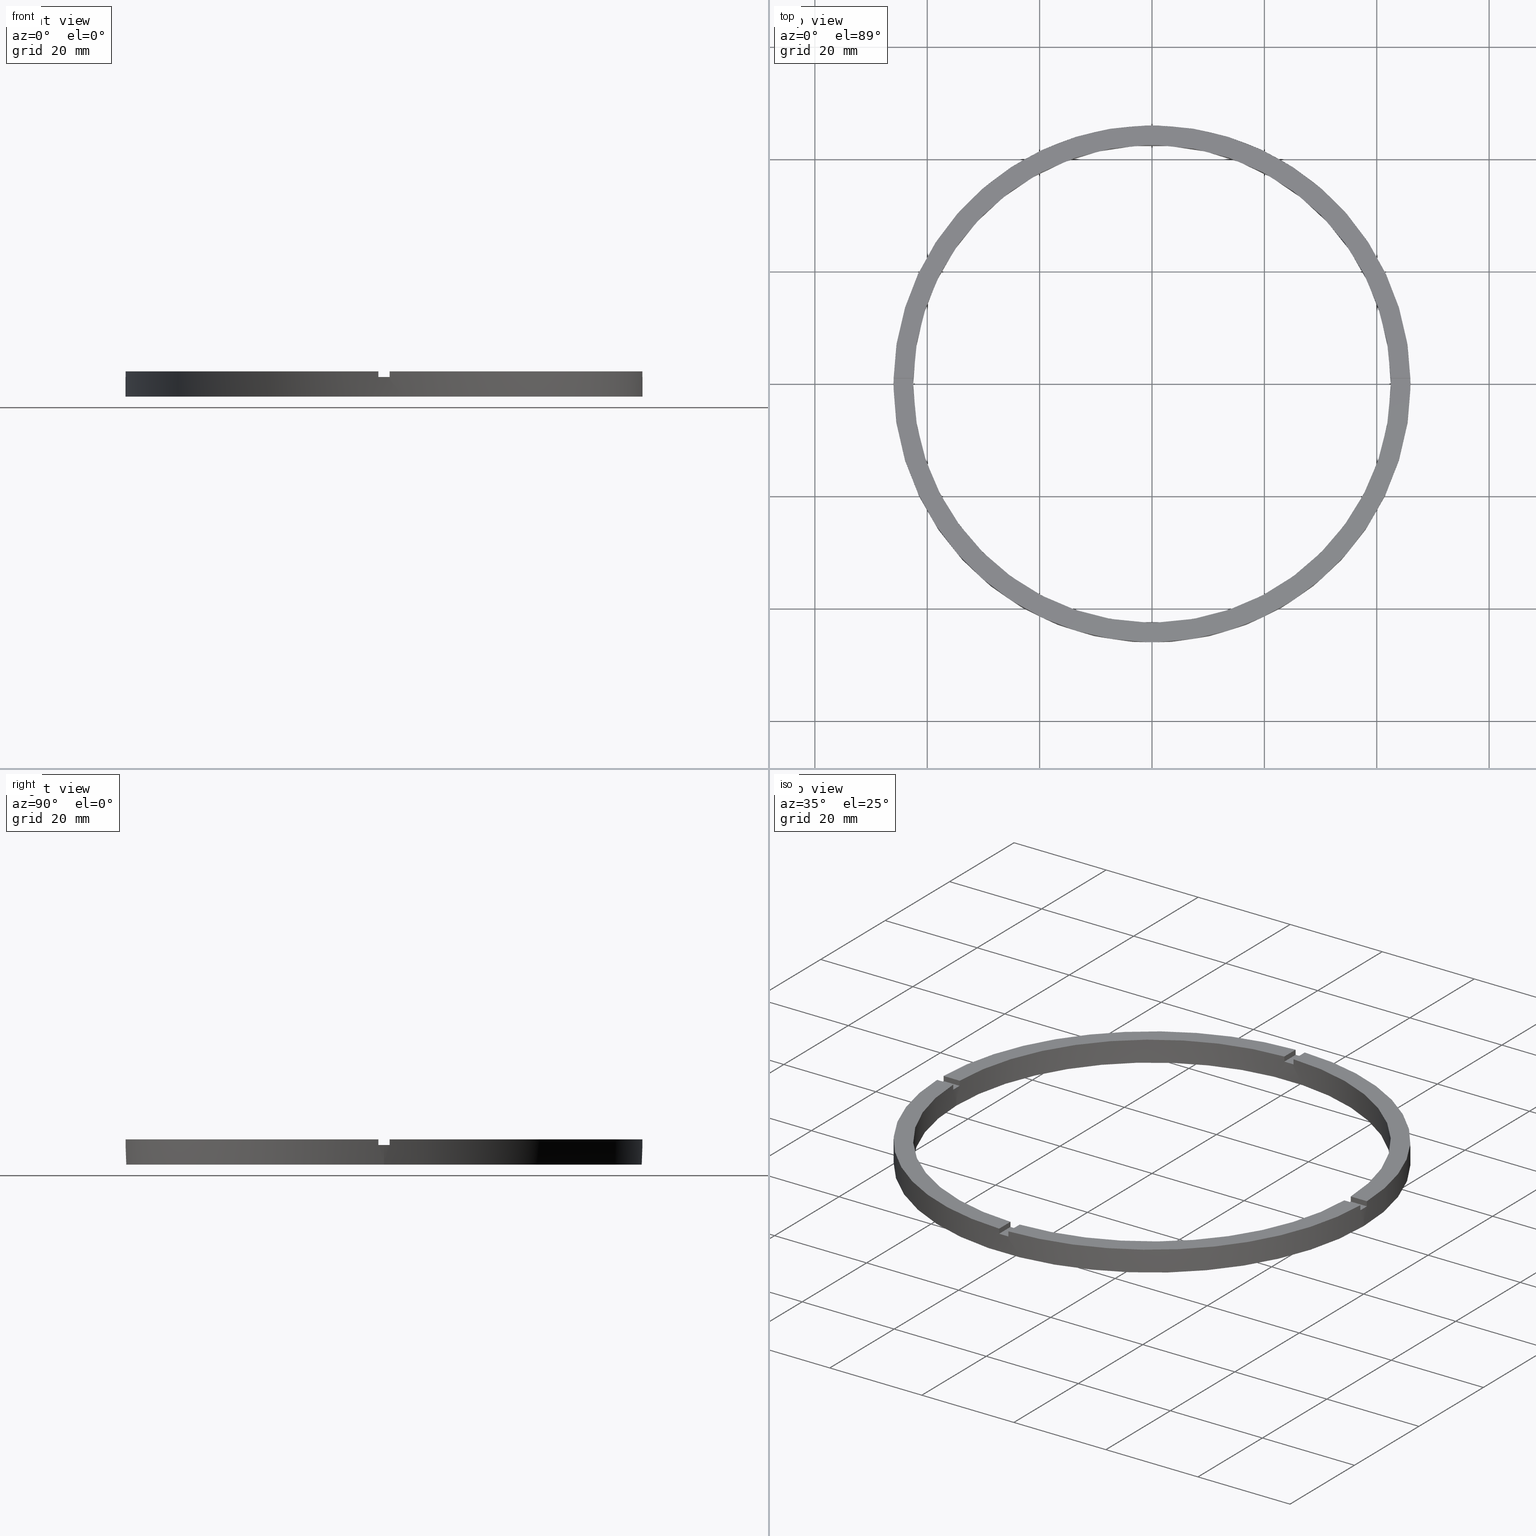
[diagram: canonical four-view strip — front | top / right | iso, engineering-drawing reading convention]
A machine part, canonical four-view strip (front | top / right | iso — engineering-drawing reading convention). The complete STEP part file that produces these views, byte-faithful:
ISO-10303-21;
HEADER;
FILE_DESCRIPTION (( 'STEP AP203' ),
    '1' );
FILE_NAME ('514188.step',
    '2024-12-26T02:46:10',
    ( 'MSI' ),
    ( '' ),
    'SwSTEP 2.0',
    'SolidWorks 2020',
    '' );
FILE_SCHEMA (( 'CONFIG_CONTROL_DESIGN' ));
ENDSEC;

DATA;
#1 = VERTEX_POINT ( 'NONE', #701 ) ;
#2 = CARTESIAN_POINT ( 'NONE',  ( 0.000000000000000000, 0.000000000000000000, 3.499999999999999556 ) ) ;
#3 = DIRECTION ( 'NONE',  ( 0.000000000000000000, -0.000000000000000000, 1.000000000000000000 ) ) ;
#4 = EDGE_LOOP ( 'NONE', ( #143, #475, #399, #482 ) ) ;
#5 = VECTOR ( 'NONE', #535, 1000.000000000000000 ) ;
#6 = EDGE_CURVE ( 'NONE', #17, #240, #424, .T. ) ;
#7 = AXIS2_PLACEMENT_3D ( 'NONE', #286, #302, #50 ) ;
#8 = DIRECTION ( 'NONE',  ( 1.000000000000000000, 0.000000000000000000, 0.000000000000000000 ) ) ;
#9 = EDGE_LOOP ( 'NONE', ( #269, #517, #467, #547 ) ) ;
#10 = PLANE ( 'NONE',  #643 ) ;
#11 = VERTEX_POINT ( 'NONE', #138 ) ;
#12 = DIRECTION ( 'NONE',  ( 0.000000000000000000, 0.000000000000000000, 1.000000000000000000 ) ) ;
#13 = DATE_AND_TIME ( #42, #293 ) ;
#14 = EDGE_LOOP ( 'NONE', ( #731, #448, #456, #385 ) ) ;
#15 = DIRECTION ( 'NONE',  ( 1.000000000000000000, 0.000000000000000000, 0.000000000000000000 ) ) ;
#16 = AXIS2_PLACEMENT_3D ( 'NONE', #728, #144, #89 ) ;
#17 = VERTEX_POINT ( 'NONE', #306 ) ;
#18 = CARTESIAN_POINT ( 'NONE',  ( 0.9999999999999737987, 36.00000000000000000, 4.500000000000000000 ) ) ;
#19 = EDGE_CURVE ( 'NONE', #487, #727, #180, .T. ) ;
#20 = ORIENTED_EDGE ( 'NONE', *, *, #700, .T. ) ;
#21 = DIRECTION ( 'NONE',  ( 0.000000000000000000, 0.000000000000000000, 1.000000000000000000 ) ) ;
#22 = EDGE_CURVE ( 'NONE', #504, #131, #178, .T. ) ;
#23 = VERTEX_POINT ( 'NONE', #656 ) ;
#24 = ADVANCED_FACE ( 'NONE', ( #680 ), #726, .T. ) ;
#25 = APPLICATION_PROTOCOL_DEFINITION ( 'international standard', 'config_control_design', 1994, #735 ) ;
#26 = CC_DESIGN_PERSON_AND_ORGANIZATION_ASSIGNMENT ( #317, #521, ( #270 ) ) ;
#27 = DIRECTION ( 'NONE',  ( -0.000000000000000000, -0.000000000000000000, -1.000000000000000000 ) ) ;
#28 = PERSON_AND_ORGANIZATION ( #272, #305 ) ;
#29 = PLANE ( 'NONE',  #102 ) ;
#30 = DIRECTION ( 'NONE',  ( 1.000000000000000000, 0.000000000000000000, 0.000000000000000000 ) ) ;
#31 = LOCAL_TIME ( 10, 46, 10.00000000000000000, #33 ) ;
#32 = SHAPE_DEFINITION_REPRESENTATION ( #621, #633 ) ;
#33 = COORDINATED_UNIVERSAL_TIME_OFFSET ( 8, 0, .AHEAD. ) ;
#34 = CARTESIAN_POINT ( 'NONE',  ( 42.48823366533375889, 0.9999999999998439026, 3.499999999999999556 ) ) ;
#35 = PERSON_AND_ORGANIZATION ( #272, #305 ) ;
#36 = CALENDAR_DATE ( 2024, 26, 12 ) ;
#37 = EDGE_CURVE ( 'NONE', #454, #17, #695, .T. ) ;
#38 = SECURITY_CLASSIFICATION_LEVEL ( 'unclassified' ) ;
#39 = DIRECTION ( 'NONE',  ( -0.000000000000000000, -0.000000000000000000, -1.000000000000000000 ) ) ;
#40 = CARTESIAN_POINT ( 'NONE',  ( -46.00000000000000000, 0.000000000000000000, 0.000000000000000000 ) ) ;
#41 = CARTESIAN_POINT ( 'NONE',  ( 0.9999999999998421263, -45.98912915026767934, 4.500000000000000000 ) ) ;
#42 = CALENDAR_DATE ( 2024, 26, 12 ) ;
#43 = DIRECTION ( 'NONE',  ( -0.000000000000000000, -0.000000000000000000, -1.000000000000000000 ) ) ;
#44 = APPROVAL_PERSON_ORGANIZATION ( #313, #354, #567 ) ;
#45 = CARTESIAN_POINT ( 'NONE',  ( -1.000000000000159206, -36.00000000000017764, 4.500000000000000000 ) ) ;
#46 = APPLICATION_CONTEXT ( 'configuration controlled 3d designs of mechanical parts and assemblies' ) ;
#47 = EDGE_CURVE ( 'NONE', #454, #492, #430, .T. ) ;
#48 = AXIS2_PLACEMENT_3D ( 'NONE', #626, #296, #380 ) ;
#49 = CARTESIAN_POINT ( 'NONE',  ( 0.000000000000000000, 0.000000000000000000, 3.499999999999999556 ) ) ;
#50 = DIRECTION ( 'NONE',  ( 1.000000000000000000, 0.000000000000000000, 0.000000000000000000 ) ) ;
#51 = DIRECTION ( 'NONE',  ( 0.000000000000000000, 0.000000000000000000, 1.000000000000000000 ) ) ;
#52 = CARTESIAN_POINT ( 'NONE',  ( 0.000000000000000000, 0.000000000000000000, 3.499999999999999556 ) ) ;
#53 = AXIS2_PLACEMENT_3D ( 'NONE', #312, #419, #394 ) ;
#54 = CARTESIAN_POINT ( 'NONE',  ( 0.9999999999999737987, 45.98912915026767223, 3.499999999999999556 ) ) ;
#55 = DIRECTION ( 'NONE',  ( 0.000000000000000000, 0.000000000000000000, 1.000000000000000000 ) ) ;
#56 = DIRECTION ( 'NONE',  ( 0.000000000000000000, 0.000000000000000000, 1.000000000000000000 ) ) ;
#57 = AXIS2_PLACEMENT_3D ( 'NONE', #511, #428, #692 ) ;
#58 = PLANE ( 'NONE',  #495 ) ;
#59 = CALENDAR_DATE ( 2024, 26, 12 ) ;
#60 = APPROVAL_DATE_TIME ( #319, #558 ) ;
#61 = CARTESIAN_POINT ( 'NONE',  ( 0.000000000000000000, 0.000000000000000000, 4.500000000000000000 ) ) ;
#62 = EDGE_CURVE ( 'NONE', #750, #225, #425, .T. ) ;
#63 = PERSON_AND_ORGANIZATION ( #272, #305 ) ;
#64 = CALENDAR_DATE ( 2024, 26, 12 ) ;
#65 = EDGE_CURVE ( 'NONE', #150, #162, #441, .T. ) ;
#66 = DIRECTION ( 'NONE',  ( 1.000000000000000000, 0.000000000000000000, 0.000000000000000000 ) ) ;
#67 = LINE ( 'NONE', #652, #74 ) ;
#68 = VECTOR ( 'NONE', #43, 1000.000000000000000 ) ;
#69 = FACE_OUTER_BOUND ( 'NONE', #267, .T. ) ;
#70 = DIRECTION ( 'NONE',  ( -6.505213034913025371E-17, 1.000000000000000000, 0.000000000000000000 ) ) ;
#71 = CIRCLE ( 'NONE', #327, 42.50000000000000711 ) ;
#72 = CARTESIAN_POINT ( 'NONE',  ( 45.98912915026767223, -1.000000000000155875, 4.500000000000000000 ) ) ;
#73 = EDGE_CURVE ( 'NONE', #162, #11, #445, .T. ) ;
#74 = VECTOR ( 'NONE', #241, 1000.000000000000000 ) ;
#75 = FACE_OUTER_BOUND ( 'NONE', #536, .T. ) ;
#76 = AXIS2_PLACEMENT_3D ( 'NONE', #682, #55, #403 ) ;
#77 = CARTESIAN_POINT ( 'NONE',  ( 35.99999999999999289, -1.000000000000156541, 3.499999999999999556 ) ) ;
#78 = PLANE ( 'NONE',  #169 ) ;
#79 = LINE ( 'NONE', #533, #604 ) ;
#80 = ADVANCED_FACE ( 'NONE', ( #176 ), #690, .F. ) ;
#81 = FACE_OUTER_BOUND ( 'NONE', #212, .T. ) ;
#82 = CIRCLE ( 'NONE', #76, 42.50000000000000711 ) ;
#83 = DIRECTION ( 'NONE',  ( 0.000000000000000000, 1.000000000000000000, 0.000000000000000000 ) ) ;
#84 = LINE ( 'NONE', #543, #606 ) ;
#85 = CIRCLE ( 'NONE', #7, 46.00000000000000000 ) ;
#86 = LINE ( 'NONE', #115, #379 ) ;
#87 = EDGE_CURVE ( 'NONE', #150, #760, #684, .T. ) ;
#88 = DIRECTION ( 'NONE',  ( 1.000000000000000000, 6.505213034913025371E-17, 0.000000000000000000 ) ) ;
#89 = DIRECTION ( 'NONE',  ( 1.000000000000000000, 0.000000000000000000, 0.000000000000000000 ) ) ;
#90 = VECTOR ( 'NONE', #644, 1000.000000000000000 ) ;
#91 = DATE_TIME_ROLE ( 'classification_date' ) ;
#92 = CIRCLE ( 'NONE', #688, 46.00000000000000000 ) ;
#93 = EDGE_CURVE ( 'NONE', #550, #648, #427, .T. ) ;
#94 = CARTESIAN_POINT ( 'NONE',  ( -1.000000000000159206, -36.00000000000017764, 3.499999999999999556 ) ) ;
#95 = LINE ( 'NONE', #105, #349 ) ;
#96 = ADVANCED_FACE ( 'NONE', ( #685 ), #29, .T. ) ;
#97 = FACE_OUTER_BOUND ( 'NONE', #740, .T. ) ;
#98 = LINE ( 'NONE', #308, #612 ) ;
#99 = LINE ( 'NONE', #133, #617 ) ;
#100 = PRODUCT_DEFINITION ( 'δ֪', '', #270, #149 ) ;
#101 = CARTESIAN_POINT ( 'NONE',  ( 0.9999999999999737987, 42.48823366533375889, 3.499999999999999556 ) ) ;
#102 = AXIS2_PLACEMENT_3D ( 'NONE', #192, #437, #634 ) ;
#103 = FACE_OUTER_BOUND ( 'NONE', #462, .T. ) ;
#104 = DIRECTION ( 'NONE',  ( 1.000000000000000000, 0.000000000000000000, 0.000000000000000000 ) ) ;
#105 = CARTESIAN_POINT ( 'NONE',  ( 35.99999999999999289, 0.9999999999998434586, 4.500000000000000000 ) ) ;
#106 = APPROVAL_STATUS ( 'not_yet_approved' ) ;
#107 = EDGE_CURVE ( 'NONE', #550, #767, #698, .T. ) ;
#108 = CARTESIAN_POINT ( 'NONE',  ( 0.9999999999999737987, 42.48823366533375889, 4.500000000000000000 ) ) ;
#109 = EDGE_CURVE ( 'NONE', #150, #202, #687, .T. ) ;
#110 = CARTESIAN_POINT ( 'NONE',  ( 35.99999999999999289, -1.000000000000156541, 4.500000000000000000 ) ) ;
#111 = AXIS2_PLACEMENT_3D ( 'NONE', #406, #696, #549 ) ;
#112 = DIRECTION ( 'NONE',  ( 0.000000000000000000, 0.000000000000000000, 1.000000000000000000 ) ) ;
#113 = CARTESIAN_POINT ( 'NONE',  ( -42.48823366533375889, 0.9999999999999705791, 4.500000000000000000 ) ) ;
#114 = EDGE_CURVE ( 'NONE', #217, #213, #691, .T. ) ;
#115 = CARTESIAN_POINT ( 'NONE',  ( -36.00000000000018474, -1.000000000000028200, 3.499999999999999556 ) ) ;
#116 = CARTESIAN_POINT ( 'NONE',  ( -46.00000000000000000, 0.000000000000000000, 3.499999999999999556 ) ) ;
#117 = CARTESIAN_POINT ( 'NONE',  ( -42.48823366533375889, 0.9999999999999705791, 3.499999999999999556 ) ) ;
#118 = CARTESIAN_POINT ( 'NONE',  ( 45.98912915026767934, 0.9999999999998441247, 3.499999999999999556 ) ) ;
#119 = DIRECTION ( 'NONE',  ( 1.000000000000000000, 0.000000000000000000, 0.000000000000000000 ) ) ;
#120 = AXIS2_PLACEMENT_3D ( 'NONE', #581, #771, #56 ) ;
#121 = CARTESIAN_POINT ( 'NONE',  ( 42.48823366533375179, -1.000000000000156097, 4.500000000000000000 ) ) ;
#122 = CARTESIAN_POINT ( 'NONE',  ( -45.98912915026767223, 0.9999999999999699130, 4.500000000000000000 ) ) ;
#123 = AXIS2_PLACEMENT_3D ( 'NONE', #94, #434, #274 ) ;
#124 = DIRECTION ( 'NONE',  ( -0.000000000000000000, -0.000000000000000000, -1.000000000000000000 ) ) ;
#125 = DIRECTION ( 'NONE',  ( 0.000000000000000000, 0.000000000000000000, 1.000000000000000000 ) ) ;
#126 = EDGE_CURVE ( 'NONE', #23, #217, #164, .T. ) ;
#127 = CARTESIAN_POINT ( 'NONE',  ( 0.9999999999999737987, 45.98912915026767223, 4.500000000000000000 ) ) ;
#128 = EDGE_CURVE ( 'NONE', #465, #162, #455, .T. ) ;
#129 = DIRECTION ( 'NONE',  ( 1.000000000000000000, 1.301042606982605074E-16, 0.000000000000000000 ) ) ;
#130 = EDGE_CURVE ( 'NONE', #767, #197, #332, .T. ) ;
#131 = VERTEX_POINT ( 'NONE', #376 ) ;
#132 = CARTESIAN_POINT ( 'NONE',  ( -42.48823366533375179, -1.000000000000029532, 4.500000000000000000 ) ) ;
#133 = CARTESIAN_POINT ( 'NONE',  ( -1.000000000000158540, -42.48823366533375179, 4.500000000000000000 ) ) ;
#134 = ORIENTED_EDGE ( 'NONE', *, *, #65, .F. ) ;
#135 = ORIENTED_EDGE ( 'NONE', *, *, #261, .F. ) ;
#136 = FACE_BOUND ( 'NONE', #715, .T. ) ;
#137 = ADVANCED_FACE ( 'NONE', ( #103 ), #523, .F. ) ;
#138 = CARTESIAN_POINT ( 'NONE',  ( 0.9999999999999737987, 45.98912915026767223, 4.500000000000000000 ) ) ;
#139 = DIRECTION ( 'NONE',  ( -1.000000000000000000, 0.000000000000000000, 0.000000000000000000 ) ) ;
#140 = AXIS2_PLACEMENT_3D ( 'NONE', #618, #21, #244 ) ;
#141 = PRODUCT_RELATED_PRODUCT_CATEGORY ( 'detail', '', ( #429 ) ) ;
#142 = ORIENTED_EDGE ( 'NONE', *, *, #417, .F. ) ;
#143 = ORIENTED_EDGE ( 'NONE', *, *, #390, .F. ) ;
#144 = DIRECTION ( 'NONE',  ( 0.000000000000000000, 0.000000000000000000, 1.000000000000000000 ) ) ;
#145 = AXIS2_PLACEMENT_3D ( 'NONE', #703, #282, #386 ) ;
#146 = ADVANCED_FACE ( 'NONE', ( #81 ), #325, .F. ) ;
#147 = DIRECTION ( 'NONE',  ( -1.000000000000000000, 0.000000000000000000, 0.000000000000000000 ) ) ;
#148 = ORIENTED_EDGE ( 'NONE', *, *, #717, .F. ) ;
#149 = DESIGN_CONTEXT ( 'detailed design', #735, 'design' ) ;
#150 = VERTEX_POINT ( 'NONE', #101 ) ;
#151 = EDGE_CURVE ( 'NONE', #243, #1, #352, .T. ) ;
#152 = APPLICATION_PROTOCOL_DEFINITION ( 'international standard', 'config_control_design', 1994, #46 ) ;
#153 = DIRECTION ( 'NONE',  ( 1.000000000000000000, 6.505213034913025371E-17, 0.000000000000000000 ) ) ;
#154 = DIRECTION ( 'NONE',  ( 0.000000000000000000, 0.000000000000000000, 1.000000000000000000 ) ) ;
#155 = VERTEX_POINT ( 'NONE', #548 ) ;
#156 = ORIENTED_EDGE ( 'NONE', *, *, #210, .T. ) ;
#157 = DIRECTION ( 'NONE',  ( 0.000000000000000000, 0.000000000000000000, 1.000000000000000000 ) ) ;
#158 = ORIENTED_EDGE ( 'NONE', *, *, #107, .F. ) ;
#159 = ORIENTED_EDGE ( 'NONE', *, *, #304, .F. ) ;
#160 = EDGE_CURVE ( 'NONE', #23, #474, #340, .T. ) ;
#161 = VERTEX_POINT ( 'NONE', #121 ) ;
#162 = VERTEX_POINT ( 'NONE', #108 ) ;
#163 = VECTOR ( 'NONE', #88, 1000.000000000000000 ) ;
#164 = LINE ( 'NONE', #41, #683 ) ;
#165 = DIRECTION ( 'NONE',  ( 0.000000000000000000, -0.000000000000000000, 1.000000000000000000 ) ) ;
#166 = ORIENTED_EDGE ( 'NONE', *, *, #315, .F. ) ;
#167 = EDGE_CURVE ( 'NONE', #492, #131, #614, .T. ) ;
#168 = AXIS2_PLACEMENT_3D ( 'NONE', #259, #566, #366 ) ;
#169 = AXIS2_PLACEMENT_3D ( 'NONE', #339, #620, #623 ) ;
#170 = CARTESIAN_POINT ( 'NONE',  ( 0.9999999999998414602, -42.48823366533375889, 3.499999999999999556 ) ) ;
#171 = CC_DESIGN_APPROVAL ( #668, ( #433 ) ) ;
#172 = VECTOR ( 'NONE', #83, 1000.000000000000000 ) ;
#173 = EDGE_LOOP ( 'NONE', ( #776, #730, #271, #247 ) ) ;
#174 = DIRECTION ( 'NONE',  ( -1.000000000000000000, -6.505213034913025371E-17, 0.000000000000000000 ) ) ;
#175 = AXIS2_PLACEMENT_3D ( 'NONE', #285, #39, #147 ) ;
#176 = FACE_OUTER_BOUND ( 'NONE', #431, .T. ) ;
#177 = VECTOR ( 'NONE', #443, 1000.000000000000000 ) ;
#178 = CIRCLE ( 'NONE', #140, 42.50000000000000711 ) ;
#179 = EDGE_CURVE ( 'NONE', #186, #760, #342, .T. ) ;
#180 = CIRCLE ( 'NONE', #506, 42.50000000000000711 ) ;
#181 = ORIENTED_EDGE ( 'NONE', *, *, #47, .T. ) ;
#182 = ORIENTED_EDGE ( 'NONE', *, *, #22, .F. ) ;
#183 = ORIENTED_EDGE ( 'NONE', *, *, #245, .F. ) ;
#184 = ORIENTED_EDGE ( 'NONE', *, *, #479, .T. ) ;
#185 = CARTESIAN_POINT ( 'NONE',  ( 0.000000000000000000, 0.000000000000000000, 4.500000000000000000 ) ) ;
#186 = VERTEX_POINT ( 'NONE', #189 ) ;
#187 = ORIENTED_EDGE ( 'NONE', *, *, #542, .F. ) ;
#188 = ADVANCED_FACE ( 'NONE', ( #334 ), #446, .F. ) ;
#189 = CARTESIAN_POINT ( 'NONE',  ( -1.000000000000026201, 45.98912915026767223, 3.499999999999999556 ) ) ;
#190 = ORIENTED_EDGE ( 'NONE', *, *, #395, .F. ) ;
#191 = ORIENTED_EDGE ( 'NONE', *, *, #350, .T. ) ;
#192 = CARTESIAN_POINT ( 'NONE',  ( 0.000000000000000000, 0.000000000000000000, 3.499999999999999556 ) ) ;
#193 = DIRECTION ( 'NONE',  ( 1.000000000000000000, -0.000000000000000000, 0.000000000000000000 ) ) ;
#194 = VERTEX_POINT ( 'NONE', #40 ) ;
#195 = ORIENTED_EDGE ( 'NONE', *, *, #373, .T. ) ;
#196 = CARTESIAN_POINT ( 'NONE',  ( 0.000000000000000000, 0.000000000000000000, 4.500000000000000000 ) ) ;
#197 = VERTEX_POINT ( 'NONE', #34 ) ;
#198 = ADVANCED_FACE ( 'NONE', ( #331 ), #753, .F. ) ;
#199 = AXIS2_PLACEMENT_3D ( 'NONE', #630, #193, #278 ) ;
#200 = ORIENTED_EDGE ( 'NONE', *, *, #686, .F. ) ;
#201 = ORIENTED_EDGE ( 'NONE', *, *, #657, .F. ) ;
#202 = VERTEX_POINT ( 'NONE', #54 ) ;
#203 = CARTESIAN_POINT ( 'NONE',  ( -42.48823366533375179, -1.000000000000029532, 4.500000000000000000 ) ) ;
#204 = ORIENTED_EDGE ( 'NONE', *, *, #167, .F. ) ;
#205 = PLANE ( 'NONE',  #605 ) ;
#206 = ORIENTED_EDGE ( 'NONE', *, *, #107, .T. ) ;
#207 = VERTEX_POINT ( 'NONE', #117 ) ;
#208 = ORIENTED_EDGE ( 'NONE', *, *, #650, .F. ) ;
#209 = CARTESIAN_POINT ( 'NONE',  ( -36.00000000000018474, -1.000000000000028200, 4.500000000000000000 ) ) ;
#210 = EDGE_CURVE ( 'NONE', #275, #468, #357, .T. ) ;
#211 = AXIS2_PLACEMENT_3D ( 'NONE', #2, #165, #515 ) ;
#212 = EDGE_LOOP ( 'NONE', ( #181, #736, #182, #719, #195, #231, #500, #166, #184, #420, #705, #409 ) ) ;
#213 = VERTEX_POINT ( 'NONE', #170 ) ;
#214 = MECHANICAL_CONTEXT ( 'NONE', #46, 'mechanical' ) ;
#215 = CARTESIAN_POINT ( 'NONE',  ( -1.000000000000157874, -45.98912915026767223, 3.499999999999999556 ) ) ;
#216 = VERTEX_POINT ( 'NONE', #412 ) ;
#217 = VERTEX_POINT ( 'NONE', #709 ) ;
#218 = ORIENTED_EDGE ( 'NONE', *, *, #130, .T. ) ;
#219 = ORIENTED_EDGE ( 'NONE', *, *, #563, .T. ) ;
#220 = ORIENTED_EDGE ( 'NONE', *, *, #87, .T. ) ;
#221 = DIRECTION ( 'NONE',  ( 1.000000000000000000, 1.951563910473907735E-16, -0.000000000000000000 ) ) ;
#222 = ORIENTED_EDGE ( 'NONE', *, *, #276, .T. ) ;
#223 = ORIENTED_EDGE ( 'NONE', *, *, #625, .F. ) ;
#224 = VERTEX_POINT ( 'NONE', #372 ) ;
#225 = VERTEX_POINT ( 'NONE', #423 ) ;
#226 = CC_DESIGN_APPROVAL ( #558, ( #270 ) ) ;
#227 = ORIENTED_EDGE ( 'NONE', *, *, #686, .T. ) ;
#228 = ORIENTED_EDGE ( 'NONE', *, *, #597, .F. ) ;
#229 = ORIENTED_EDGE ( 'NONE', *, *, #570, .T. ) ;
#230 = ORIENTED_EDGE ( 'NONE', *, *, #459, .T. ) ;
#231 = ORIENTED_EDGE ( 'NONE', *, *, #62, .F. ) ;
#232 = DIRECTION ( 'NONE',  ( -0.000000000000000000, -0.000000000000000000, -1.000000000000000000 ) ) ;
#233 = FACE_OUTER_BOUND ( 'NONE', #450, .T. ) ;
#234 = ORIENTED_EDGE ( 'NONE', *, *, #373, .F. ) ;
#235 = DIRECTION ( 'NONE',  ( -1.000000000000000000, -1.951563910473907735E-16, 0.000000000000000000 ) ) ;
#236 = VECTOR ( 'NONE', #453, 1000.000000000000000 ) ;
#237 = ORIENTED_EDGE ( 'NONE', *, *, #553, .T. ) ;
#238 = VECTOR ( 'NONE', #555, 1000.000000000000000 ) ;
#239 = DIRECTION ( 'NONE',  ( -0.000000000000000000, -0.000000000000000000, -1.000000000000000000 ) ) ;
#240 = VERTEX_POINT ( 'NONE', #72 ) ;
#241 = DIRECTION ( 'NONE',  ( -0.000000000000000000, -0.000000000000000000, -1.000000000000000000 ) ) ;
#242 = CIRCLE ( 'NONE', #422, 46.00000000000000000 ) ;
#243 = VERTEX_POINT ( 'NONE', #660 ) ;
#244 = DIRECTION ( 'NONE',  ( 1.000000000000000000, 0.000000000000000000, 0.000000000000000000 ) ) ;
#245 = EDGE_CURVE ( 'NONE', #23, #240, #591, .T. ) ;
#246 = CYLINDRICAL_SURFACE ( 'NONE', #747, 46.00000000000000000 ) ;
#247 = ORIENTED_EDGE ( 'NONE', *, *, #775, .T. ) ;
#248 = DIRECTION ( 'NONE',  ( 0.000000000000000000, 0.000000000000000000, 1.000000000000000000 ) ) ;
#249 = LINE ( 'NONE', #209, #236 ) ;
#250 = ORIENTED_EDGE ( 'NONE', *, *, #179, .F. ) ;
#251 = DIRECTION ( 'NONE',  ( 1.000000000000000000, 0.000000000000000000, 0.000000000000000000 ) ) ;
#252 = CIRCLE ( 'NONE', #518, 46.00000000000000000 ) ;
#253 = LINE ( 'NONE', #370, #764 ) ;
#254 = CARTESIAN_POINT ( 'NONE',  ( 0.000000000000000000, 0.000000000000000000, 3.499999999999999556 ) ) ;
#255 = CARTESIAN_POINT ( 'NONE',  ( 0.9999999999998409050, -36.00000000000017764, 3.499999999999999556 ) ) ;
#256 = CARTESIAN_POINT ( 'NONE',  ( -45.98912915026767223, 0.9999999999999699130, 3.499999999999999556 ) ) ;
#257 = EDGE_LOOP ( 'NONE', ( #452, #661, #494, #228 ) ) ;
#258 = EDGE_LOOP ( 'NONE', ( #384, #414, #783, #183, #415, #744, #490, #732, #222, #148, #485, #737 ) ) ;
#259 = CARTESIAN_POINT ( 'NONE',  ( 0.000000000000000000, 0.000000000000000000, 4.500000000000000000 ) ) ;
#260 = CARTESIAN_POINT ( 'NONE',  ( 0.000000000000000000, 0.000000000000000000, 4.500000000000000000 ) ) ;
#261 = EDGE_CURVE ( 'NONE', #202, #186, #586, .T. ) ;
#262 = AXIS2_PLACEMENT_3D ( 'NONE', #371, #3, #15 ) ;
#263 = FACE_OUTER_BOUND ( 'NONE', #435, .T. ) ;
#264 = EDGE_CURVE ( 'NONE', #468, #194, #67, .T. ) ;
#265 = CARTESIAN_POINT ( 'NONE',  ( 0.000000000000000000, 0.000000000000000000, 3.499999999999999556 ) ) ;
#266 = FACE_OUTER_BOUND ( 'NONE', #4, .T. ) ;
#267 = EDGE_LOOP ( 'NONE', ( #156, #464, #229, #234, #187, #191 ) ) ;
#268 = VECTOR ( 'NONE', #51, 1000.000000000000000 ) ;
#269 = ORIENTED_EDGE ( 'NONE', *, *, #109, .F. ) ;
#270 = PRODUCT_DEFINITION_FORMATION_WITH_SPECIFIED_SOURCE ( '�κ�', '', #429, .NOT_KNOWN. ) ;
#271 = ORIENTED_EDGE ( 'NONE', *, *, #479, .F. ) ;
#272 = PERSON ( 'δָ��', 'δָ��', 'δָ��', ('δָ��'), ('δָ��'), ('δָ��') ) ;
#273 = LINE ( 'NONE', #45, #539 ) ;
#274 = DIRECTION ( 'NONE',  ( 1.301042606982605074E-16, -1.000000000000000000, 0.000000000000000000 ) ) ;
#275 = VERTEX_POINT ( 'NONE', #256 ) ;
#276 = EDGE_CURVE ( 'NONE', #243, #702, #98, .T. ) ;
#277 = CARTESIAN_POINT ( 'NONE',  ( 0.9999999999999737987, 36.00000000000000000, 3.499999999999999556 ) ) ;
#278 = DIRECTION ( 'NONE',  ( 0.000000000000000000, 0.000000000000000000, -1.000000000000000000 ) ) ;
#279 = ADVANCED_FACE ( 'NONE', ( #359 ), #655, .F. ) ;
#280 = EDGE_CURVE ( 'NONE', #488, #11, #616, .T. ) ;
#281 = CARTESIAN_POINT ( 'NONE',  ( -36.00000000000018474, 0.9999999999999718003, 3.499999999999999556 ) ) ;
#282 = DIRECTION ( 'NONE',  ( 0.000000000000000000, 0.000000000000000000, 1.000000000000000000 ) ) ;
#283 = CARTESIAN_POINT ( 'NONE',  ( 46.00000000000000000, 5.633375276077824704E-15, 4.500000000000000000 ) ) ;
#284 = DIRECTION ( 'NONE',  ( 1.000000000000000000, 0.000000000000000000, -0.000000000000000000 ) ) ;
#285 = CARTESIAN_POINT ( 'NONE',  ( 0.000000000000000000, 0.000000000000000000, 4.500000000000000000 ) ) ;
#286 = CARTESIAN_POINT ( 'NONE',  ( 0.000000000000000000, 0.000000000000000000, 0.000000000000000000 ) ) ;
#287 = PERSON_AND_ORGANIZATION_ROLE ( 'design_owner' ) ;
#288 = ORIENTED_EDGE ( 'NONE', *, *, #679, .F. ) ;
#289 = PLANE ( 'NONE',  #571 ) ;
#290 = APPROVAL_PERSON_ORGANIZATION ( #298, #668, #723 ) ;
#291 = DIRECTION ( 'NONE',  ( 0.000000000000000000, 0.000000000000000000, 1.000000000000000000 ) ) ;
#292 = CALENDAR_DATE ( 2024, 26, 12 ) ;
#293 = LOCAL_TIME ( 10, 46, 10.00000000000000000, #561 ) ;
#294 = CARTESIAN_POINT ( 'NONE',  ( -42.50000000000000711, 0.000000000000000000, 0.000000000000000000 ) ) ;
#295 = CARTESIAN_POINT ( 'NONE',  ( -1.000000000000158540, -42.48823366533375179, 3.499999999999999556 ) ) ;
#296 = DIRECTION ( 'NONE',  ( 0.000000000000000000, 0.000000000000000000, 1.000000000000000000 ) ) ;
#297 = PLANE ( 'NONE',  #622 ) ;
#298 = PERSON_AND_ORGANIZATION ( #272, #305 ) ;
#299 =( LENGTH_UNIT ( ) NAMED_UNIT ( * ) SI_UNIT ( .MILLI., .METRE. ) );
#300 = AXIS2_PLACEMENT_3D ( 'NONE', #530, #248, #491 ) ;
#301 = CARTESIAN_POINT ( 'NONE',  ( 0.000000000000000000, 0.000000000000000000, 3.499999999999999556 ) ) ;
#302 = DIRECTION ( 'NONE',  ( 0.000000000000000000, 0.000000000000000000, 1.000000000000000000 ) ) ;
#303 = DIRECTION ( 'NONE',  ( 1.000000000000000000, 0.000000000000000000, 0.000000000000000000 ) ) ;
#304 = EDGE_CURVE ( 'NONE', #474, #161, #611, .T. ) ;
#305 = ORGANIZATION ( 'δָ��', 'δָ��', '' ) ;
#306 = CARTESIAN_POINT ( 'NONE',  ( 45.98912915026767223, -1.000000000000155875, 3.499999999999999556 ) ) ;
#307 = CARTESIAN_POINT ( 'NONE',  ( 0.000000000000000000, 0.000000000000000000, 4.500000000000000000 ) ) ;
#308 = CARTESIAN_POINT ( 'NONE',  ( -45.98912915026767223, -1.000000000000030198, 4.500000000000000000 ) ) ;
#309 = DATE_AND_TIME ( #292, #31 ) ;
#310 = CC_DESIGN_PERSON_AND_ORGANIZATION_ASSIGNMENT ( #35, #378, ( #100 ) ) ;
#311 = COORDINATED_UNIVERSAL_TIME_OFFSET ( 8, 0, .AHEAD. ) ;
#312 = CARTESIAN_POINT ( 'NONE',  ( 0.000000000000000000, 0.000000000000000000, 4.500000000000000000 ) ) ;
#313 = PERSON_AND_ORGANIZATION ( #272, #305 ) ;
#314 = CARTESIAN_POINT ( 'NONE',  ( 0.000000000000000000, 0.000000000000000000, 4.500000000000000000 ) ) ;
#315 = EDGE_CURVE ( 'NONE', #413, #216, #99, .T. ) ;
#316 = LOCAL_TIME ( 10, 46, 10.00000000000000000, #576 ) ;
#317 = PERSON_AND_ORGANIZATION ( #272, #305 ) ;
#318 = DIRECTION ( 'NONE',  ( -0.000000000000000000, -0.000000000000000000, -1.000000000000000000 ) ) ;
#319 = DATE_AND_TIME ( #59, #316 ) ;
#320 = PERSON_AND_ORGANIZATION ( #272, #305 ) ;
#321 = ADVANCED_FACE ( 'NONE', ( #596 ), #498, .F. ) ;
#322 = DATE_AND_TIME ( #64, #575 ) ;
#323 = DATE_TIME_ROLE ( 'creation_date' ) ;
#324 = CARTESIAN_POINT ( 'NONE',  ( 0.9999999999998409050, -36.00000000000017764, 4.500000000000000000 ) ) ;
#325 = CYLINDRICAL_SURFACE ( 'NONE', #667, 42.50000000000000711 ) ;
#326 = LINE ( 'NONE', #396, #90 ) ;
#327 = AXIS2_PLACEMENT_3D ( 'NONE', #52, #757, #641 ) ;
#328 = APPROVAL_STATUS ( 'not_yet_approved' ) ;
#329 = CC_DESIGN_SECURITY_CLASSIFICATION ( #433, ( #270 ) ) ;
#330 = CIRCLE ( 'NONE', #377, 42.50000000000000711 ) ;
#331 = FACE_OUTER_BOUND ( 'NONE', #257, .T. ) ;
#332 = LINE ( 'NONE', #400, #619 ) ;
#333 = VECTOR ( 'NONE', #632, 1000.000000000000000 ) ;
#334 = FACE_OUTER_BOUND ( 'NONE', #512, .T. ) ;
#335 =( GEOMETRIC_REPRESENTATION_CONTEXT ( 3 ) GLOBAL_UNCERTAINTY_ASSIGNED_CONTEXT ( ( #426 ) ) GLOBAL_UNIT_ASSIGNED_CONTEXT ( ( #299, #756, #594 ) ) REPRESENTATION_CONTEXT ( 'NONE', 'WORKASPACE' ) );
#336 = CIRCLE ( 'NONE', #659, 46.00000000000000000 ) ;
#337 = FACE_OUTER_BOUND ( 'NONE', #710, .T. ) ;
#338 = AXIS2_PLACEMENT_3D ( 'NONE', #255, #129, #375 ) ;
#339 = CARTESIAN_POINT ( 'NONE',  ( 35.99999999999999289, -1.000000000000156541, 3.499999999999999556 ) ) ;
#340 = LINE ( 'NONE', #324, #610 ) ;
#341 = PLANE ( 'NONE',  #120 ) ;
#342 = LINE ( 'NONE', #599, #355 ) ;
#343 = DIRECTION ( 'NONE',  ( -1.951563910473907735E-16, 1.000000000000000000, 0.000000000000000000 ) ) ;
#344 = ADVANCED_FACE ( 'NONE', ( #97 ), #78, .F. ) ;
#345 = CARTESIAN_POINT ( 'NONE',  ( -36.00000000000018474, 0.9999999999999718003, 4.500000000000000000 ) ) ;
#346 = DIRECTION ( 'NONE',  ( 1.000000000000000000, 0.000000000000000000, 0.000000000000000000 ) ) ;
#347 = LINE ( 'NONE', #693, #608 ) ;
#348 = CARTESIAN_POINT ( 'NONE',  ( 42.48823366533375889, 0.9999999999998439026, 4.500000000000000000 ) ) ;
#349 = VECTOR ( 'NONE', #658, 1000.000000000000000 ) ;
#350 = EDGE_CURVE ( 'NONE', #207, #275, #584, .T. ) ;
#351 = CARTESIAN_POINT ( 'NONE',  ( -45.98912915026767223, 0.9999999999999699130, 4.500000000000000000 ) ) ;
#352 = CIRCLE ( 'NONE', #48, 46.00000000000000000 ) ;
#353 = DIRECTION ( 'NONE',  ( 0.000000000000000000, 0.000000000000000000, 1.000000000000000000 ) ) ;
#354 = APPROVAL ( #328, 'δָ��' ) ;
#355 = VECTOR ( 'NONE', #374, 1000.000000000000000 ) ;
#356 = DIRECTION ( 'NONE',  ( 1.000000000000000000, 0.000000000000000000, 0.000000000000000000 ) ) ;
#357 = CIRCLE ( 'NONE', #579, 46.00000000000000000 ) ;
#358 = DIRECTION ( 'NONE',  ( 1.000000000000000000, 0.000000000000000000, -0.000000000000000000 ) ) ;
#359 = FACE_OUTER_BOUND ( 'NONE', #733, .T. ) ;
#360 = CIRCLE ( 'NONE', #111, 42.50000000000000711 ) ;
#361 = CARTESIAN_POINT ( 'NONE',  ( 42.48823366533375889, 0.9999999999998439026, 4.500000000000000000 ) ) ;
#362 = LINE ( 'NONE', #110, #589 ) ;
#363 = CARTESIAN_POINT ( 'NONE',  ( 0.000000000000000000, 0.000000000000000000, 3.499999999999999556 ) ) ;
#364 = CARTESIAN_POINT ( 'NONE',  ( 0.000000000000000000, 0.000000000000000000, 4.500000000000000000 ) ) ;
#365 = CARTESIAN_POINT ( 'NONE',  ( 0.000000000000000000, 0.000000000000000000, 3.499999999999999556 ) ) ;
#366 = DIRECTION ( 'NONE',  ( -1.000000000000000000, 0.000000000000000000, 0.000000000000000000 ) ) ;
#367 = PLANE ( 'NONE',  #145 ) ;
#368 = EDGE_CURVE ( 'NONE', #488, #465, #95, .T. ) ;
#369 = CC_DESIGN_PERSON_AND_ORGANIZATION_ASSIGNMENT ( #320, #745, ( #433 ) ) ;
#370 = CARTESIAN_POINT ( 'NONE',  ( -1.000000000000157874, -45.98912915026767223, 4.500000000000000000 ) ) ;
#371 = CARTESIAN_POINT ( 'NONE',  ( 0.000000000000000000, 0.000000000000000000, 3.499999999999999556 ) ) ;
#372 = CARTESIAN_POINT ( 'NONE',  ( -1.000000000000026201, 45.98912915026767223, 4.500000000000000000 ) ) ;
#373 = EDGE_CURVE ( 'NONE', #155, #225, #71, .T. ) ;
#374 = DIRECTION ( 'NONE',  ( -0.000000000000000000, -1.000000000000000000, -0.000000000000000000 ) ) ;
#375 = DIRECTION ( 'NONE',  ( -1.301042606982605074E-16, 1.000000000000000000, 0.000000000000000000 ) ) ;
#376 = CARTESIAN_POINT ( 'NONE',  ( 42.50000000000000711, 5.204748896376252474E-15, 0.000000000000000000 ) ) ;
#377 = AXIS2_PLACEMENT_3D ( 'NONE', #595, #451, #356 ) ;
#378 = PERSON_AND_ORGANIZATION_ROLE ( 'creator' ) ;
#379 = VECTOR ( 'NONE', #221, 1000.000000000000000 ) ;
#380 = DIRECTION ( 'NONE',  ( 1.000000000000000000, 0.000000000000000000, 0.000000000000000000 ) ) ;
#381 = VECTOR ( 'NONE', #353, 1000.000000000000000 ) ;
#382 = DIRECTION ( 'NONE',  ( -0.000000000000000000, -0.000000000000000000, -1.000000000000000000 ) ) ;
#383 = CARTESIAN_POINT ( 'NONE',  ( 0.000000000000000000, 0.000000000000000000, 0.000000000000000000 ) ) ;
#384 = ORIENTED_EDGE ( 'NONE', *, *, #93, .F. ) ;
#385 = ORIENTED_EDGE ( 'NONE', *, *, #280, .T. ) ;
#386 = DIRECTION ( 'NONE',  ( 1.000000000000000000, 0.000000000000000000, -0.000000000000000000 ) ) ;
#387 = CIRCLE ( 'NONE', #444, 42.50000000000000711 ) ;
#388 = CARTESIAN_POINT ( 'NONE',  ( -1.000000000000026201, 42.48823366533375179, 3.499999999999999556 ) ) ;
#389 = ORIENTED_EDGE ( 'NONE', *, *, #160, .T. ) ;
#390 = EDGE_CURVE ( 'NONE', #224, #487, #79, .T. ) ;
#391 = AXIS2_PLACEMENT_3D ( 'NONE', #196, #738, #629 ) ;
#392 = CARTESIAN_POINT ( 'NONE',  ( 0.9999999999998414602, -42.48823366533375889, 4.500000000000000000 ) ) ;
#393 = ADVANCED_FACE ( 'NONE', ( #75 ), #289, .T. ) ;
#394 = DIRECTION ( 'NONE',  ( 1.000000000000000000, 0.000000000000000000, 0.000000000000000000 ) ) ;
#395 = EDGE_CURVE ( 'NONE', #207, #727, #326, .T. ) ;
#396 = CARTESIAN_POINT ( 'NONE',  ( -42.48823366533375889, 0.9999999999999705791, 4.500000000000000000 ) ) ;
#397 = CARTESIAN_POINT ( 'NONE',  ( -1.000000000000159206, -36.00000000000017764, 3.499999999999999556 ) ) ;
#398 = ORIENTED_EDGE ( 'NONE', *, *, #570, .F. ) ;
#399 = ORIENTED_EDGE ( 'NONE', *, *, #631, .F. ) ;
#400 = CARTESIAN_POINT ( 'NONE',  ( 35.99999999999999289, 0.9999999999998434586, 3.499999999999999556 ) ) ;
#401 = EDGE_CURVE ( 'NONE', #17, #550, #336, .T. ) ;
#402 = ORIENTED_EDGE ( 'NONE', *, *, #390, .T. ) ;
#403 = DIRECTION ( 'NONE',  ( 1.000000000000000000, 0.000000000000000000, 0.000000000000000000 ) ) ;
#404 = CARTESIAN_POINT ( 'NONE',  ( 0.000000000000000000, 0.000000000000000000, 0.000000000000000000 ) ) ;
#405 = CLOSED_SHELL ( 'NONE', ( #146, #665, #637, #24, #628, #393, #624, #725, #80, #188, #198, #510, #279, #137, #96, #669, #344, #743, #751, #321, #438 ) ) ;
#406 = CARTESIAN_POINT ( 'NONE',  ( 0.000000000000000000, 0.000000000000000000, 0.000000000000000000 ) ) ;
#407 = EDGE_CURVE ( 'NONE', #161, #240, #362, .T. ) ;
#408 = VERTEX_POINT ( 'NONE', #215 ) ;
#409 = ORIENTED_EDGE ( 'NONE', *, *, #754, .F. ) ;
#410 = CARTESIAN_POINT ( 'NONE',  ( 0.000000000000000000, 0.000000000000000000, 3.499999999999999556 ) ) ;
#411 = ORIENTED_EDGE ( 'NONE', *, *, #62, .T. ) ;
#412 = CARTESIAN_POINT ( 'NONE',  ( -1.000000000000158540, -42.48823366533375179, 4.500000000000000000 ) ) ;
#413 = VERTEX_POINT ( 'NONE', #295 ) ;
#414 = ORIENTED_EDGE ( 'NONE', *, *, #401, .F. ) ;
#415 = ORIENTED_EDGE ( 'NONE', *, *, #126, .T. ) ;
#416 = DIRECTION ( 'NONE',  ( -1.000000000000000000, 0.000000000000000000, 0.000000000000000000 ) ) ;
#417 = EDGE_CURVE ( 'NONE', #194, #648, #92, .T. ) ;
#418 = ORIENTED_EDGE ( 'NONE', *, *, #245, .T. ) ;
#419 = DIRECTION ( 'NONE',  ( 0.000000000000000000, 0.000000000000000000, 1.000000000000000000 ) ) ;
#420 = ORIENTED_EDGE ( 'NONE', *, *, #553, .F. ) ;
#421 = DIRECTION ( 'NONE',  ( 0.000000000000000000, 0.000000000000000000, 1.000000000000000000 ) ) ;
#422 = AXIS2_PLACEMENT_3D ( 'NONE', #752, #642, #746 ) ;
#423 = CARTESIAN_POINT ( 'NONE',  ( -42.48823366533375179, -1.000000000000029532, 3.499999999999999556 ) ) ;
#424 = LINE ( 'NONE', #551, #432 ) ;
#425 = LINE ( 'NONE', #132, #436 ) ;
#426 = UNCERTAINTY_MEASURE_WITH_UNIT (LENGTH_MEASURE( 1.000000000000000082E-05 ), #299, 'distance_accuracy_value', 'NONE');
#427 = LINE ( 'NONE', #283, #447 ) ;
#428 = DIRECTION ( 'NONE',  ( 1.951563910473907735E-16, -1.000000000000000000, 0.000000000000000000 ) ) ;
#429 = PRODUCT ( '514188', '514188', '', ( #214 ) ) ;
#430 = CIRCLE ( 'NONE', #638, 42.50000000000000711 ) ;
#431 = EDGE_LOOP ( 'NONE', ( #204, #711, #463, #707, #134, #220, #556, #514, #190, #662, #230, #670 ) ) ;
#432 = VECTOR ( 'NONE', #557, 1000.000000000000000 ) ;
#433 = SECURITY_CLASSIFICATION ( '', '', #38 ) ;
#434 = DIRECTION ( 'NONE',  ( -1.000000000000000000, -1.301042606982605074E-16, 0.000000000000000000 ) ) ;
#435 = EDGE_LOOP ( 'NONE', ( #158, #520, #697, #729, #722, #499, #739, #227, #135, #713, #503, #219 ) ) ;
#436 = VECTOR ( 'NONE', #607, 1000.000000000000000 ) ;
#437 = DIRECTION ( 'NONE',  ( -0.000000000000000000, 0.000000000000000000, 1.000000000000000000 ) ) ;
#438 = ADVANCED_FACE ( 'NONE', ( #337 ), #58, .T. ) ;
#439 = APPROVAL_ROLE ( '' ) ;
#440 = CARTESIAN_POINT ( 'NONE',  ( 42.50000000000000711, 5.204748896376252474E-15, 4.500000000000000000 ) ) ;
#441 = LINE ( 'NONE', #663, #689 ) ;
#442 = EDGE_CURVE ( 'NONE', #131, #504, #360, .T. ) ;
#443 = DIRECTION ( 'NONE',  ( 0.000000000000000000, 1.000000000000000000, 0.000000000000000000 ) ) ;
#444 = AXIS2_PLACEMENT_3D ( 'NONE', #585, #552, #66 ) ;
#445 = LINE ( 'NONE', #18, #172 ) ;
#446 = PLANE ( 'NONE',  #57 ) ;
#447 = VECTOR ( 'NONE', #382, 1000.000000000000000 ) ;
#448 = ORIENTED_EDGE ( 'NONE', *, *, #128, .F. ) ;
#449 = CARTESIAN_POINT ( 'NONE',  ( 46.00000000000000000, 5.633375276077824704E-15, 0.000000000000000000 ) ) ;
#450 = EDGE_LOOP ( 'NONE', ( #724, #206, #218, #208, #718, #646 ) ) ;
#451 = DIRECTION ( 'NONE',  ( -0.000000000000000000, 0.000000000000000000, 1.000000000000000000 ) ) ;
#452 = ORIENTED_EDGE ( 'NONE', *, *, #350, .F. ) ;
#453 = DIRECTION ( 'NONE',  ( 1.000000000000000000, 1.951563910473907735E-16, -0.000000000000000000 ) ) ;
#454 = VERTEX_POINT ( 'NONE', #749 ) ;
#455 = CIRCLE ( 'NONE', #391, 42.50000000000000711 ) ;
#456 = ORIENTED_EDGE ( 'NONE', *, *, #368, .F. ) ;
#457 = DIRECTION ( 'NONE',  ( -0.000000000000000000, -0.000000000000000000, -1.000000000000000000 ) ) ;
#458 = DIRECTION ( 'NONE',  ( 1.301042606982605074E-16, -1.000000000000000000, 0.000000000000000000 ) ) ;
#459 = EDGE_CURVE ( 'NONE', #155, #504, #598, .T. ) ;
#460 = CARTESIAN_POINT ( 'NONE',  ( -42.50000000000000711, 0.000000000000000000, 4.500000000000000000 ) ) ;
#461 = DIRECTION ( 'NONE',  ( -0.000000000000000000, -0.000000000000000000, -1.000000000000000000 ) ) ;
#462 = EDGE_LOOP ( 'NONE', ( #546, #477, #774, #201 ) ) ;
#463 = ORIENTED_EDGE ( 'NONE', *, *, #493, .F. ) ;
#464 = ORIENTED_EDGE ( 'NONE', *, *, #717, .T. ) ;
#465 = VERTEX_POINT ( 'NONE', #348 ) ;
#466 = AXIS2_PLACEMENT_3D ( 'NONE', #404, #470, #346 ) ;
#467 = ORIENTED_EDGE ( 'NONE', *, *, #73, .T. ) ;
#468 = VERTEX_POINT ( 'NONE', #116 ) ;
#469 = DIRECTION ( 'NONE',  ( 0.000000000000000000, 0.000000000000000000, 1.000000000000000000 ) ) ;
#470 = DIRECTION ( 'NONE',  ( 0.000000000000000000, 0.000000000000000000, 1.000000000000000000 ) ) ;
#471 = EDGE_LOOP ( 'NONE', ( #508, #159, #497, #418 ) ) ;
#472 = DIRECTION ( 'NONE',  ( 0.000000000000000000, 0.000000000000000000, 1.000000000000000000 ) ) ;
#473 = ORIENTED_EDGE ( 'NONE', *, *, #407, .T. ) ;
#474 = VERTEX_POINT ( 'NONE', #392 ) ;
#475 = ORIENTED_EDGE ( 'NONE', *, *, #676, .T. ) ;
#476 = DIRECTION ( 'NONE',  ( 0.000000000000000000, 0.000000000000000000, 1.000000000000000000 ) ) ;
#477 = ORIENTED_EDGE ( 'NONE', *, *, #315, .T. ) ;
#478 = ORIENTED_EDGE ( 'NONE', *, *, #109, .T. ) ;
#479 = EDGE_CURVE ( 'NONE', #413, #213, #330, .T. ) ;
#480 = EDGE_LOOP ( 'NONE', ( #402, #20, #250, #200 ) ) ;
#481 = ORIENTED_EDGE ( 'NONE', *, *, #37, .F. ) ;
#482 = ORIENTED_EDGE ( 'NONE', *, *, #19, .F. ) ;
#483 = CC_DESIGN_PERSON_AND_ORGANIZATION_ASSIGNMENT ( #28, #287, ( #429 ) ) ;
#484 = EDGE_LOOP ( 'NONE', ( #142, #763 ) ) ;
#485 = ORIENTED_EDGE ( 'NONE', *, *, #264, .T. ) ;
#486 = ORIENTED_EDGE ( 'NONE', *, *, #563, .F. ) ;
#487 = VERTEX_POINT ( 'NONE', #603 ) ;
#488 = VERTEX_POINT ( 'NONE', #781 ) ;
#489 = DIRECTION ( 'NONE',  ( 0.000000000000000000, 0.000000000000000000, 1.000000000000000000 ) ) ;
#490 = ORIENTED_EDGE ( 'NONE', *, *, #657, .T. ) ;
#491 = DIRECTION ( 'NONE',  ( 1.000000000000000000, 0.000000000000000000, 0.000000000000000000 ) ) ;
#492 = VERTEX_POINT ( 'NONE', #587 ) ;
#493 = EDGE_CURVE ( 'NONE', #465, #197, #600, .T. ) ;
#494 = ORIENTED_EDGE ( 'NONE', *, *, #631, .T. ) ;
#495 = AXIS2_PLACEMENT_3D ( 'NONE', #301, #677, #284 ) ;
#496 = DIRECTION ( 'NONE',  ( 1.000000000000000000, 0.000000000000000000, 0.000000000000000000 ) ) ;
#497 = ORIENTED_EDGE ( 'NONE', *, *, #160, .F. ) ;
#498 = PLANE ( 'NONE',  #199 ) ;
#499 = ORIENTED_EDGE ( 'NONE', *, *, #597, .T. ) ;
#500 = ORIENTED_EDGE ( 'NONE', *, *, #601, .T. ) ;
#501 = DIRECTION ( 'NONE',  ( 1.000000000000000000, 0.000000000000000000, -0.000000000000000000 ) ) ;
#502 = LINE ( 'NONE', #397, #773 ) ;
#503 = ORIENTED_EDGE ( 'NONE', *, *, #280, .F. ) ;
#504 = VERTEX_POINT ( 'NONE', #294 ) ;
#505 = CIRCLE ( 'NONE', #53, 46.00000000000000000 ) ;
#506 = AXIS2_PLACEMENT_3D ( 'NONE', #185, #125, #8 ) ;
#507 = AXIS2_PLACEMENT_3D ( 'NONE', #410, #476, #639 ) ;
#508 = ORIENTED_EDGE ( 'NONE', *, *, #407, .F. ) ;
#509 = CC_DESIGN_DATE_AND_TIME_ASSIGNMENT ( #322, #91, ( #433 ) ) ;
#510 = ADVANCED_FACE ( 'NONE', ( #69 ), #651, .T. ) ;
#511 = CARTESIAN_POINT ( 'NONE',  ( -36.00000000000018474, -1.000000000000028200, 3.499999999999999556 ) ) ;
#512 = EDGE_LOOP ( 'NONE', ( #759, #411, #398, #708 ) ) ;
#513 = FACE_OUTER_BOUND ( 'NONE', #699, .T. ) ;
#514 = ORIENTED_EDGE ( 'NONE', *, *, #19, .T. ) ;
#515 = DIRECTION ( 'NONE',  ( 1.000000000000000000, 0.000000000000000000, 0.000000000000000000 ) ) ;
#516 = VECTOR ( 'NONE', #461, 1000.000000000000000 ) ;
#517 = ORIENTED_EDGE ( 'NONE', *, *, #65, .T. ) ;
#518 = AXIS2_PLACEMENT_3D ( 'NONE', #590, #154, #635 ) ;
#519 = CYLINDRICAL_SURFACE ( 'NONE', #175, 46.00000000000000000 ) ;
#520 = ORIENTED_EDGE ( 'NONE', *, *, #93, .T. ) ;
#521 = PERSON_AND_ORGANIZATION_ROLE ( 'creator' ) ;
#522 = LINE ( 'NONE', #640, #268 ) ;
#523 = PLANE ( 'NONE',  #123 ) ;
#524 = LINE ( 'NONE', #127, #238 ) ;
#525 = FACE_OUTER_BOUND ( 'NONE', #258, .T. ) ;
#526 = ORIENTED_EDGE ( 'NONE', *, *, #126, .F. ) ;
#527 = ORIENTED_EDGE ( 'NONE', *, *, #114, .F. ) ;
#528 = DIRECTION ( 'NONE',  ( -1.000000000000000000, -6.505213034913025371E-17, -0.000000000000000000 ) ) ;
#529 = ORIENTED_EDGE ( 'NONE', *, *, #22, .T. ) ;
#530 = CARTESIAN_POINT ( 'NONE',  ( 0.000000000000000000, 0.000000000000000000, 3.499999999999999556 ) ) ;
#531 = CIRCLE ( 'NONE', #300, 42.50000000000000711 ) ;
#532 = ORIENTED_EDGE ( 'NONE', *, *, #151, .T. ) ;
#533 = CARTESIAN_POINT ( 'NONE',  ( -1.000000000000026201, 36.00000000000000000, 4.500000000000000000 ) ) ;
#534 = ORIENTED_EDGE ( 'NONE', *, *, #368, .T. ) ;
#535 = DIRECTION ( 'NONE',  ( -0.000000000000000000, -0.000000000000000000, -1.000000000000000000 ) ) ;
#536 = EDGE_LOOP ( 'NONE', ( #223, #562, #288, #532 ) ) ;
#537 = LINE ( 'NONE', #345, #766 ) ;
#538 = CARTESIAN_POINT ( 'NONE',  ( 0.000000000000000000, 0.000000000000000000, 4.500000000000000000 ) ) ;
#539 = VECTOR ( 'NONE', #770, 1000.000000000000000 ) ;
#540 = CARTESIAN_POINT ( 'NONE',  ( -1.000000000000026201, 45.98912915026767223, 4.500000000000000000 ) ) ;
#541 = ORIENTED_EDGE ( 'NONE', *, *, #130, .F. ) ;
#542 = EDGE_CURVE ( 'NONE', #207, #155, #82, .T. ) ;
#543 = CARTESIAN_POINT ( 'NONE',  ( 0.9999999999998414602, -42.48823366533375889, 4.500000000000000000 ) ) ;
#544 = FACE_OUTER_BOUND ( 'NONE', #471, .T. ) ;
#545 = DIRECTION ( 'NONE',  ( 1.000000000000000000, 0.000000000000000000, -0.000000000000000000 ) ) ;
#546 = ORIENTED_EDGE ( 'NONE', *, *, #775, .F. ) ;
#547 = ORIENTED_EDGE ( 'NONE', *, *, #666, .F. ) ;
#548 = CARTESIAN_POINT ( 'NONE',  ( -42.50000000000000711, 0.000000000000000000, 3.499999999999999556 ) ) ;
#549 = DIRECTION ( 'NONE',  ( 1.000000000000000000, 0.000000000000000000, 0.000000000000000000 ) ) ;
#550 = VERTEX_POINT ( 'NONE', #761 ) ;
#551 = CARTESIAN_POINT ( 'NONE',  ( 45.98912915026767223, -1.000000000000155875, 4.500000000000000000 ) ) ;
#552 = DIRECTION ( 'NONE',  ( 0.000000000000000000, 0.000000000000000000, 1.000000000000000000 ) ) ;
#553 = EDGE_CURVE ( 'NONE', #474, #213, #84, .T. ) ;
#554 = EDGE_CURVE ( 'NONE', #648, #194, #85, .T. ) ;
#555 = DIRECTION ( 'NONE',  ( 0.000000000000000000, 0.000000000000000000, 1.000000000000000000 ) ) ;
#556 = ORIENTED_EDGE ( 'NONE', *, *, #700, .F. ) ;
#557 = DIRECTION ( 'NONE',  ( 0.000000000000000000, 0.000000000000000000, 1.000000000000000000 ) ) ;
#558 = APPROVAL ( #573, 'δָ��' ) ;
#559 = AXIS2_PLACEMENT_3D ( 'NONE', #265, #741, #104 ) ;
#560 = LOCAL_TIME ( 10, 46, 10.00000000000000000, #311 ) ;
#561 = COORDINATED_UNIVERSAL_TIME_OFFSET ( 8, 0, .AHEAD. ) ;
#562 = ORIENTED_EDGE ( 'NONE', *, *, #601, .F. ) ;
#563 = EDGE_CURVE ( 'NONE', #488, #767, #347, .T. ) ;
#564 = DATE_AND_TIME ( #36, #560 ) ;
#565 = APPROVAL_DATE_TIME ( #13, #668 ) ;
#566 = DIRECTION ( 'NONE',  ( -0.000000000000000000, -0.000000000000000000, -1.000000000000000000 ) ) ;
#567 = APPROVAL_ROLE ( '' ) ;
#568 = MANIFOLD_SOLID_BREP ( '�г�-����1', #405 ) ;
#569 = APPROVAL_DATE_TIME ( #309, #354 ) ;
#570 = EDGE_CURVE ( 'NONE', #702, #225, #86, .T. ) ;
#571 = AXIS2_PLACEMENT_3D ( 'NONE', #538, #472, #545 ) ;
#572 = PERSON_AND_ORGANIZATION ( #272, #305 ) ;
#573 = APPROVAL_STATUS ( 'not_yet_approved' ) ;
#574 = CARTESIAN_POINT ( 'NONE',  ( 0.9999999999998409050, -36.00000000000017764, 3.499999999999999556 ) ) ;
#575 = LOCAL_TIME ( 10, 46, 10.00000000000000000, #577 ) ;
#576 = COORDINATED_UNIVERSAL_TIME_OFFSET ( 8, 0, .AHEAD. ) ;
#577 = COORDINATED_UNIVERSAL_TIME_OFFSET ( 8, 0, .AHEAD. ) ;
#578 = CARTESIAN_POINT ( 'NONE',  ( -1.000000000000026201, 42.48823366533375179, 4.500000000000000000 ) ) ;
#579 = AXIS2_PLACEMENT_3D ( 'NONE', #363, #777, #251 ) ;
#580 = APPROVAL_PERSON_ORGANIZATION ( #572, #558, #439 ) ;
#581 = CARTESIAN_POINT ( 'NONE',  ( -1.000000000000026201, 36.00000000000000000, 3.499999999999999556 ) ) ;
#582 = DIRECTION ( 'NONE',  ( -0.000000000000000000, -1.000000000000000000, -0.000000000000000000 ) ) ;
#583 = PLANE ( 'NONE',  #694 ) ;
#584 = LINE ( 'NONE', #742, #593 ) ;
#585 = CARTESIAN_POINT ( 'NONE',  ( 0.000000000000000000, 0.000000000000000000, 4.500000000000000000 ) ) ;
#586 = CIRCLE ( 'NONE', #262, 46.00000000000000000 ) ;
#587 = CARTESIAN_POINT ( 'NONE',  ( 42.50000000000000711, 5.204748896376252474E-15, 3.499999999999999556 ) ) ;
#588 = VECTOR ( 'NONE', #124, 1000.000000000000000 ) ;
#589 = VECTOR ( 'NONE', #153, 1000.000000000000000 ) ;
#590 = CARTESIAN_POINT ( 'NONE',  ( 0.000000000000000000, 0.000000000000000000, 3.499999999999999556 ) ) ;
#591 = CIRCLE ( 'NONE', #645, 46.00000000000000000 ) ;
#592 = DIRECTION ( 'NONE',  ( 1.000000000000000000, 0.000000000000000000, -0.000000000000000000 ) ) ;
#593 = VECTOR ( 'NONE', #664, 1000.000000000000000 ) ;
#594 =( NAMED_UNIT ( * ) SI_UNIT ( $, .STERADIAN. ) SOLID_ANGLE_UNIT ( ) );
#595 = CARTESIAN_POINT ( 'NONE',  ( 0.000000000000000000, 0.000000000000000000, 3.499999999999999556 ) ) ;
#596 = FACE_OUTER_BOUND ( 'NONE', #9, .T. ) ;
#597 = EDGE_CURVE ( 'NONE', #275, #704, #647, .T. ) ;
#598 = LINE ( 'NONE', #460, #68 ) ;
#599 = CARTESIAN_POINT ( 'NONE',  ( -1.000000000000026201, 36.00000000000000000, 3.499999999999999556 ) ) ;
#600 = LINE ( 'NONE', #361, #588 ) ;
#601 = EDGE_CURVE ( 'NONE', #750, #216, #387, .T. ) ;
#602 = DIRECTION ( 'NONE',  ( 1.000000000000000000, 0.000000000000000000, -0.000000000000000000 ) ) ;
#603 = CARTESIAN_POINT ( 'NONE',  ( -1.000000000000026201, 42.48823366533375179, 4.500000000000000000 ) ) ;
#604 = VECTOR ( 'NONE', #582, 1000.000000000000000 ) ;
#605 = AXIS2_PLACEMENT_3D ( 'NONE', #755, #112, #592 ) ;
#606 = VECTOR ( 'NONE', #457, 1000.000000000000000 ) ;
#607 = DIRECTION ( 'NONE',  ( -0.000000000000000000, -0.000000000000000000, -1.000000000000000000 ) ) ;
#608 = VECTOR ( 'NONE', #779, 1000.000000000000000 ) ;
#609 = DIRECTION ( 'NONE',  ( 1.000000000000000000, 0.000000000000000000, 0.000000000000000000 ) ) ;
#610 = VECTOR ( 'NONE', #681, 1000.000000000000000 ) ;
#611 = CIRCLE ( 'NONE', #778, 42.50000000000000711 ) ;
#612 = VECTOR ( 'NONE', #318, 1000.000000000000000 ) ;
#613 = CARTESIAN_POINT ( 'NONE',  ( 35.99999999999999289, 0.9999999999998434586, 3.499999999999999556 ) ) ;
#614 = LINE ( 'NONE', #440, #333 ) ;
#615 = AXIS2_PLACEMENT_3D ( 'NONE', #712, #12, #501 ) ;
#616 = CIRCLE ( 'NONE', #16, 46.00000000000000000 ) ;
#617 = VECTOR ( 'NONE', #489, 1000.000000000000000 ) ;
#618 = CARTESIAN_POINT ( 'NONE',  ( 0.000000000000000000, 0.000000000000000000, 0.000000000000000000 ) ) ;
#619 = VECTOR ( 'NONE', #528, 1000.000000000000000 ) ;
#620 = DIRECTION ( 'NONE',  ( 6.505213034913025371E-17, -1.000000000000000000, 0.000000000000000000 ) ) ;
#621 = PRODUCT_DEFINITION_SHAPE ( 'NONE', 'NONE',  #100 ) ;
#622 = AXIS2_PLACEMENT_3D ( 'NONE', #364, #469, #602 ) ;
#623 = DIRECTION ( 'NONE',  ( 1.000000000000000000, 6.505213034913025371E-17, 0.000000000000000000 ) ) ;
#624 = ADVANCED_FACE ( 'NONE', ( #649, #136 ), #205, .F. ) ;
#625 = EDGE_CURVE ( 'NONE', #216, #1, #273, .T. ) ;
#626 = CARTESIAN_POINT ( 'NONE',  ( 0.000000000000000000, 0.000000000000000000, 4.500000000000000000 ) ) ;
#627 = CC_DESIGN_APPROVAL ( #354, ( #100 ) ) ;
#628 = ADVANCED_FACE ( 'NONE', ( #544 ), #297, .T. ) ;
#629 = DIRECTION ( 'NONE',  ( 1.000000000000000000, 0.000000000000000000, 0.000000000000000000 ) ) ;
#630 = CARTESIAN_POINT ( 'NONE',  ( 0.9999999999999737987, 36.00000000000000000, 3.499999999999999556 ) ) ;
#631 = EDGE_CURVE ( 'NONE', #727, #704, #537, .T. ) ;
#632 = DIRECTION ( 'NONE',  ( -0.000000000000000000, -0.000000000000000000, -1.000000000000000000 ) ) ;
#633 = ADVANCED_BREP_SHAPE_REPRESENTATION ( '514188', ( #568, #466 ), #335 ) ;
#634 = DIRECTION ( 'NONE',  ( 1.000000000000000000, 0.000000000000000000, 0.000000000000000000 ) ) ;
#635 = DIRECTION ( 'NONE',  ( 1.000000000000000000, 0.000000000000000000, 0.000000000000000000 ) ) ;
#636 = DIRECTION ( 'NONE',  ( -1.000000000000000000, -1.951563910473907735E-16, 0.000000000000000000 ) ) ;
#637 = ADVANCED_FACE ( 'NONE', ( #266 ), #367, .T. ) ;
#638 = AXIS2_PLACEMENT_3D ( 'NONE', #254, #421, #496 ) ;
#639 = DIRECTION ( 'NONE',  ( 1.000000000000000000, 0.000000000000000000, -0.000000000000000000 ) ) ;
#640 = CARTESIAN_POINT ( 'NONE',  ( 42.48823366533375179, -1.000000000000156097, 4.500000000000000000 ) ) ;
#641 = DIRECTION ( 'NONE',  ( 1.000000000000000000, 0.000000000000000000, 0.000000000000000000 ) ) ;
#642 = DIRECTION ( 'NONE',  ( -0.000000000000000000, 0.000000000000000000, 1.000000000000000000 ) ) ;
#643 = AXIS2_PLACEMENT_3D ( 'NONE', #613, #70, #174 ) ;
#644 = DIRECTION ( 'NONE',  ( 0.000000000000000000, 0.000000000000000000, 1.000000000000000000 ) ) ;
#645 = AXIS2_PLACEMENT_3D ( 'NONE', #314, #716, #609 ) ;
#646 = ORIENTED_EDGE ( 'NONE', *, *, #37, .T. ) ;
#647 = LINE ( 'NONE', #122, #381 ) ;
#648 = VERTEX_POINT ( 'NONE', #449 ) ;
#649 = FACE_OUTER_BOUND ( 'NONE', #484, .T. ) ;
#650 = EDGE_CURVE ( 'NONE', #492, #197, #531, .T. ) ;
#651 = PLANE ( 'NONE',  #507 ) ;
#652 = CARTESIAN_POINT ( 'NONE',  ( -46.00000000000000000, 0.000000000000000000, 4.500000000000000000 ) ) ;
#653 = CC_DESIGN_DATE_AND_TIME_ASSIGNMENT ( #564, #323, ( #100 ) ) ;
#654 = DIRECTION ( 'NONE',  ( 0.000000000000000000, 0.000000000000000000, 1.000000000000000000 ) ) ;
#655 = PLANE ( 'NONE',  #338 ) ;
#656 = CARTESIAN_POINT ( 'NONE',  ( 0.9999999999998421263, -45.98912915026767934, 4.500000000000000000 ) ) ;
#657 = EDGE_CURVE ( 'NONE', #408, #1, #253, .T. ) ;
#658 = DIRECTION ( 'NONE',  ( -1.000000000000000000, -6.505213034913025371E-17, -0.000000000000000000 ) ) ;
#659 = AXIS2_PLACEMENT_3D ( 'NONE', #365, #157, #303 ) ;
#660 = CARTESIAN_POINT ( 'NONE',  ( -45.98912915026767223, -1.000000000000030198, 4.500000000000000000 ) ) ;
#661 = ORIENTED_EDGE ( 'NONE', *, *, #395, .T. ) ;
#662 = ORIENTED_EDGE ( 'NONE', *, *, #542, .T. ) ;
#663 = CARTESIAN_POINT ( 'NONE',  ( 0.9999999999999737987, 42.48823366533375889, 4.500000000000000000 ) ) ;
#664 = DIRECTION ( 'NONE',  ( -1.000000000000000000, -1.951563910473907735E-16, 0.000000000000000000 ) ) ;
#665 = ADVANCED_FACE ( 'NONE', ( #263 ), #246, .T. ) ;
#666 = EDGE_CURVE ( 'NONE', #202, #11, #524, .T. ) ;
#667 = AXIS2_PLACEMENT_3D ( 'NONE', #61, #232, #139 ) ;
#668 = APPROVAL ( #106, 'δָ��' ) ;
#669 = ADVANCED_FACE ( 'NONE', ( #513 ), #10, .F. ) ;
#670 = ORIENTED_EDGE ( 'NONE', *, *, #442, .F. ) ;
#671 = ORIENTED_EDGE ( 'NONE', *, *, #442, .T. ) ;
#672 = AXIS2_PLACEMENT_3D ( 'NONE', #281, #343, #636 ) ;
#673 = VECTOR ( 'NONE', #748, 1000.000000000000000 ) ;
#674 = PERSON_AND_ORGANIZATION_ROLE ( 'design_supplier' ) ;
#675 = CARTESIAN_POINT ( 'NONE',  ( -45.98912915026767223, -1.000000000000030198, 3.499999999999999556 ) ) ;
#676 = EDGE_CURVE ( 'NONE', #224, #704, #505, .T. ) ;
#677 = DIRECTION ( 'NONE',  ( 0.000000000000000000, -0.000000000000000000, 1.000000000000000000 ) ) ;
#678 = ORIENTED_EDGE ( 'NONE', *, *, #179, .T. ) ;
#679 = EDGE_CURVE ( 'NONE', #243, #750, #249, .T. ) ;
#680 = FACE_OUTER_BOUND ( 'NONE', #14, .T. ) ;
#681 = DIRECTION ( 'NONE',  ( -1.301042606982605074E-16, 1.000000000000000000, -0.000000000000000000 ) ) ;
#682 = CARTESIAN_POINT ( 'NONE',  ( 0.000000000000000000, 0.000000000000000000, 3.499999999999999556 ) ) ;
#683 = VECTOR ( 'NONE', #27, 1000.000000000000000 ) ;
#684 = CIRCLE ( 'NONE', #211, 42.50000000000000711 ) ;
#685 = FACE_OUTER_BOUND ( 'NONE', #173, .T. ) ;
#686 = EDGE_CURVE ( 'NONE', #224, #186, #782, .T. ) ;
#687 = LINE ( 'NONE', #277, #177 ) ;
#688 = AXIS2_PLACEMENT_3D ( 'NONE', #383, #772, #119 ) ;
#689 = VECTOR ( 'NONE', #720, 1000.000000000000000 ) ;
#690 = CYLINDRICAL_SURFACE ( 'NONE', #168, 42.50000000000000711 ) ;
#691 = LINE ( 'NONE', #574, #673 ) ;
#692 = DIRECTION ( 'NONE',  ( 1.000000000000000000, 1.951563910473907735E-16, 0.000000000000000000 ) ) ;
#693 = CARTESIAN_POINT ( 'NONE',  ( 45.98912915026767934, 0.9999999999998441247, 4.500000000000000000 ) ) ;
#694 = AXIS2_PLACEMENT_3D ( 'NONE', #49, #291, #358 ) ;
#695 = LINE ( 'NONE', #77, #163 ) ;
#696 = DIRECTION ( 'NONE',  ( 0.000000000000000000, 0.000000000000000000, 1.000000000000000000 ) ) ;
#697 = ORIENTED_EDGE ( 'NONE', *, *, #554, .T. ) ;
#698 = CIRCLE ( 'NONE', #559, 46.00000000000000000 ) ;
#699 = EDGE_LOOP ( 'NONE', ( #534, #721, #541, #486 ) ) ;
#700 = EDGE_CURVE ( 'NONE', #487, #760, #758, .T. ) ;
#701 = CARTESIAN_POINT ( 'NONE',  ( -1.000000000000157874, -45.98912915026767223, 4.500000000000000000 ) ) ;
#702 = VERTEX_POINT ( 'NONE', #675 ) ;
#703 = CARTESIAN_POINT ( 'NONE',  ( 0.000000000000000000, 0.000000000000000000, 4.500000000000000000 ) ) ;
#704 = VERTEX_POINT ( 'NONE', #351 ) ;
#705 = ORIENTED_EDGE ( 'NONE', *, *, #304, .T. ) ;
#706 = EDGE_CURVE ( 'NONE', #408, #217, #242, .T. ) ;
#707 = ORIENTED_EDGE ( 'NONE', *, *, #128, .T. ) ;
#708 = ORIENTED_EDGE ( 'NONE', *, *, #276, .F. ) ;
#709 = CARTESIAN_POINT ( 'NONE',  ( 0.9999999999998421263, -45.98912915026767934, 3.499999999999999556 ) ) ;
#710 = EDGE_LOOP ( 'NONE', ( #768, #678, #765, #478 ) ) ;
#711 = ORIENTED_EDGE ( 'NONE', *, *, #650, .T. ) ;
#712 = CARTESIAN_POINT ( 'NONE',  ( 0.000000000000000000, 0.000000000000000000, 4.500000000000000000 ) ) ;
#713 = ORIENTED_EDGE ( 'NONE', *, *, #666, .T. ) ;
#714 = DIRECTION ( 'NONE',  ( 0.000000000000000000, 0.000000000000000000, 1.000000000000000000 ) ) ;
#715 = EDGE_LOOP ( 'NONE', ( #529, #671 ) ) ;
#716 = DIRECTION ( 'NONE',  ( 0.000000000000000000, 0.000000000000000000, 1.000000000000000000 ) ) ;
#717 = EDGE_CURVE ( 'NONE', #468, #702, #252, .T. ) ;
#718 = ORIENTED_EDGE ( 'NONE', *, *, #47, .F. ) ;
#719 = ORIENTED_EDGE ( 'NONE', *, *, #459, .F. ) ;
#720 = DIRECTION ( 'NONE',  ( 0.000000000000000000, 0.000000000000000000, 1.000000000000000000 ) ) ;
#721 = ORIENTED_EDGE ( 'NONE', *, *, #493, .T. ) ;
#722 = ORIENTED_EDGE ( 'NONE', *, *, #210, .F. ) ;
#723 = APPROVAL_ROLE ( '' ) ;
#724 = ORIENTED_EDGE ( 'NONE', *, *, #401, .T. ) ;
#725 = ADVANCED_FACE ( 'NONE', ( #525 ), #519, .T. ) ;
#726 = PLANE ( 'NONE',  #615 ) ;
#727 = VERTEX_POINT ( 'NONE', #113 ) ;
#728 = CARTESIAN_POINT ( 'NONE',  ( 0.000000000000000000, 0.000000000000000000, 4.500000000000000000 ) ) ;
#729 = ORIENTED_EDGE ( 'NONE', *, *, #264, .F. ) ;
#730 = ORIENTED_EDGE ( 'NONE', *, *, #114, .T. ) ;
#731 = ORIENTED_EDGE ( 'NONE', *, *, #73, .F. ) ;
#732 = ORIENTED_EDGE ( 'NONE', *, *, #151, .F. ) ;
#733 = EDGE_LOOP ( 'NONE', ( #389, #237, #527, #526 ) ) ;
#734 = ORIENTED_EDGE ( 'NONE', *, *, #754, .T. ) ;
#735 = APPLICATION_CONTEXT ( 'configuration controlled 3d designs of mechanical parts and assemblies' ) ;
#736 = ORIENTED_EDGE ( 'NONE', *, *, #167, .T. ) ;
#737 = ORIENTED_EDGE ( 'NONE', *, *, #417, .T. ) ;
#738 = DIRECTION ( 'NONE',  ( 0.000000000000000000, 0.000000000000000000, 1.000000000000000000 ) ) ;
#739 = ORIENTED_EDGE ( 'NONE', *, *, #676, .F. ) ;
#740 = EDGE_LOOP ( 'NONE', ( #481, #734, #473, #780 ) ) ;
#741 = DIRECTION ( 'NONE',  ( 0.000000000000000000, 0.000000000000000000, 1.000000000000000000 ) ) ;
#742 = CARTESIAN_POINT ( 'NONE',  ( -36.00000000000018474, 0.9999999999999718003, 3.499999999999999556 ) ) ;
#743 = ADVANCED_FACE ( 'NONE', ( #233 ), #583, .T. ) ;
#744 = ORIENTED_EDGE ( 'NONE', *, *, #706, .F. ) ;
#745 = PERSON_AND_ORGANIZATION_ROLE ( 'classification_officer' ) ;
#746 = DIRECTION ( 'NONE',  ( 1.000000000000000000, 0.000000000000000000, 0.000000000000000000 ) ) ;
#747 = AXIS2_PLACEMENT_3D ( 'NONE', #307, #239, #416 ) ;
#748 = DIRECTION ( 'NONE',  ( -1.301042606982605074E-16, 1.000000000000000000, -0.000000000000000000 ) ) ;
#749 = CARTESIAN_POINT ( 'NONE',  ( 42.48823366533375179, -1.000000000000156097, 3.499999999999999556 ) ) ;
#750 = VERTEX_POINT ( 'NONE', #203 ) ;
#751 = ADVANCED_FACE ( 'NONE', ( #769 ), #341, .F. ) ;
#752 = CARTESIAN_POINT ( 'NONE',  ( 0.000000000000000000, 0.000000000000000000, 3.499999999999999556 ) ) ;
#753 = PLANE ( 'NONE',  #672 ) ;
#754 = EDGE_CURVE ( 'NONE', #454, #161, #522, .T. ) ;
#755 = CARTESIAN_POINT ( 'NONE',  ( 0.000000000000000000, 0.000000000000000000, 0.000000000000000000 ) ) ;
#756 =( NAMED_UNIT ( * ) PLANE_ANGLE_UNIT ( ) SI_UNIT ( $, .RADIAN. ) );
#757 = DIRECTION ( 'NONE',  ( 0.000000000000000000, 0.000000000000000000, 1.000000000000000000 ) ) ;
#758 = LINE ( 'NONE', #578, #5 ) ;
#759 = ORIENTED_EDGE ( 'NONE', *, *, #679, .T. ) ;
#760 = VERTEX_POINT ( 'NONE', #388 ) ;
#761 = CARTESIAN_POINT ( 'NONE',  ( 46.00000000000000000, 5.633375276077824704E-15, 3.499999999999999556 ) ) ;
#762 = CC_DESIGN_PERSON_AND_ORGANIZATION_ASSIGNMENT ( #63, #674, ( #270 ) ) ;
#763 = ORIENTED_EDGE ( 'NONE', *, *, #554, .F. ) ;
#764 = VECTOR ( 'NONE', #654, 1000.000000000000000 ) ;
#765 = ORIENTED_EDGE ( 'NONE', *, *, #87, .F. ) ;
#766 = VECTOR ( 'NONE', #235, 1000.000000000000000 ) ;
#767 = VERTEX_POINT ( 'NONE', #118 ) ;
#768 = ORIENTED_EDGE ( 'NONE', *, *, #261, .T. ) ;
#769 = FACE_OUTER_BOUND ( 'NONE', #480, .T. ) ;
#770 = DIRECTION ( 'NONE',  ( 1.301042606982605074E-16, -1.000000000000000000, 0.000000000000000000 ) ) ;
#771 = DIRECTION ( 'NONE',  ( -1.000000000000000000, 0.000000000000000000, 0.000000000000000000 ) ) ;
#772 = DIRECTION ( 'NONE',  ( 0.000000000000000000, 0.000000000000000000, 1.000000000000000000 ) ) ;
#773 = VECTOR ( 'NONE', #458, 1000.000000000000000 ) ;
#774 = ORIENTED_EDGE ( 'NONE', *, *, #625, .T. ) ;
#775 = EDGE_CURVE ( 'NONE', #413, #408, #502, .T. ) ;
#776 = ORIENTED_EDGE ( 'NONE', *, *, #706, .T. ) ;
#777 = DIRECTION ( 'NONE',  ( 0.000000000000000000, 0.000000000000000000, 1.000000000000000000 ) ) ;
#778 = AXIS2_PLACEMENT_3D ( 'NONE', #260, #714, #30 ) ;
#779 = DIRECTION ( 'NONE',  ( -0.000000000000000000, -0.000000000000000000, -1.000000000000000000 ) ) ;
#780 = ORIENTED_EDGE ( 'NONE', *, *, #6, .F. ) ;
#781 = CARTESIAN_POINT ( 'NONE',  ( 45.98912915026767934, 0.9999999999998441247, 4.500000000000000000 ) ) ;
#782 = LINE ( 'NONE', #540, #516 ) ;
#783 = ORIENTED_EDGE ( 'NONE', *, *, #6, .T. ) ;
ENDSEC;
END-ISO-10303-21;
